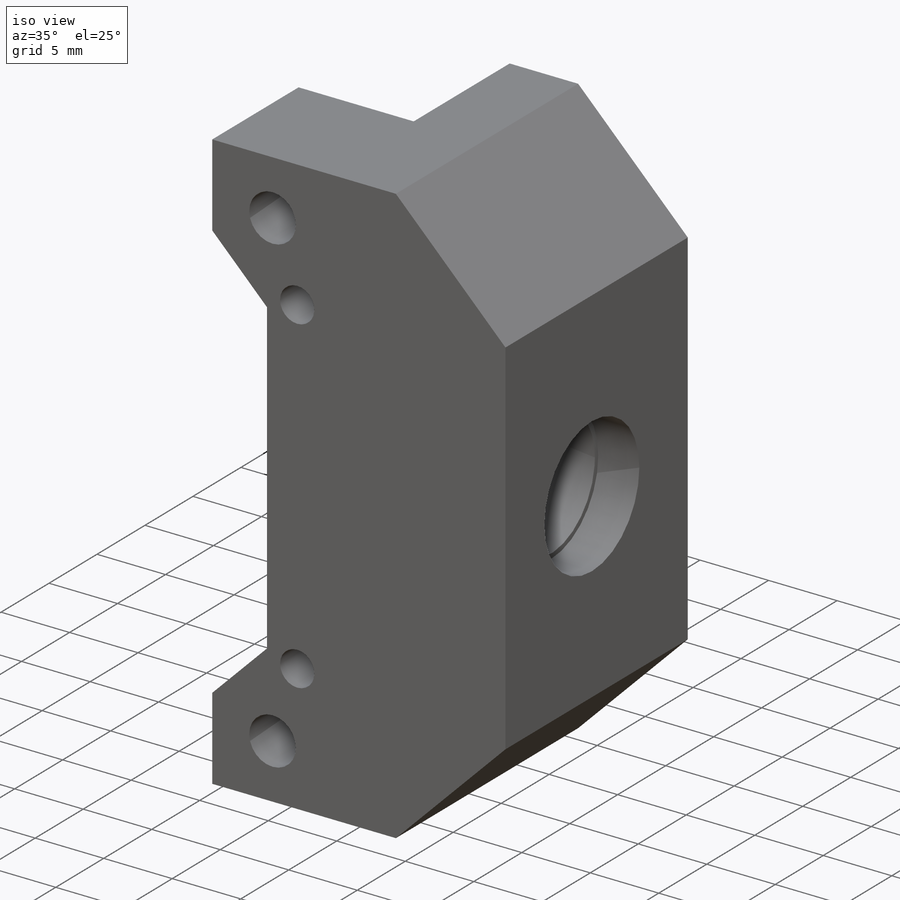
[diagram: iso view]
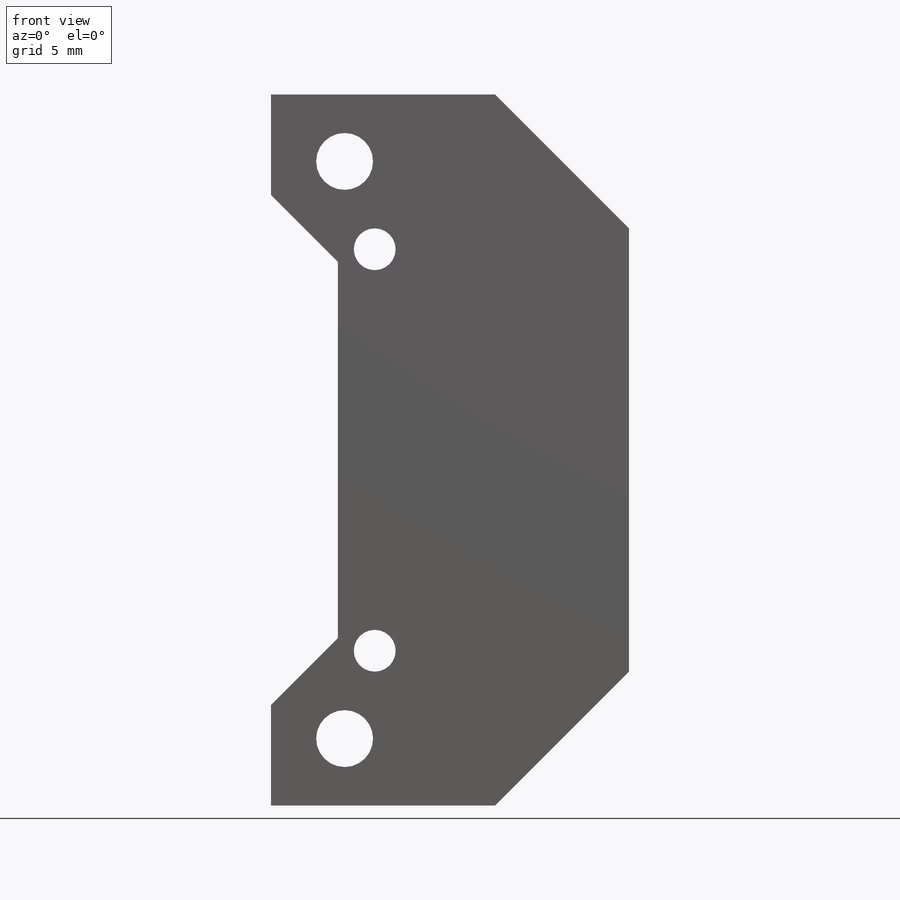
[diagram: front view]
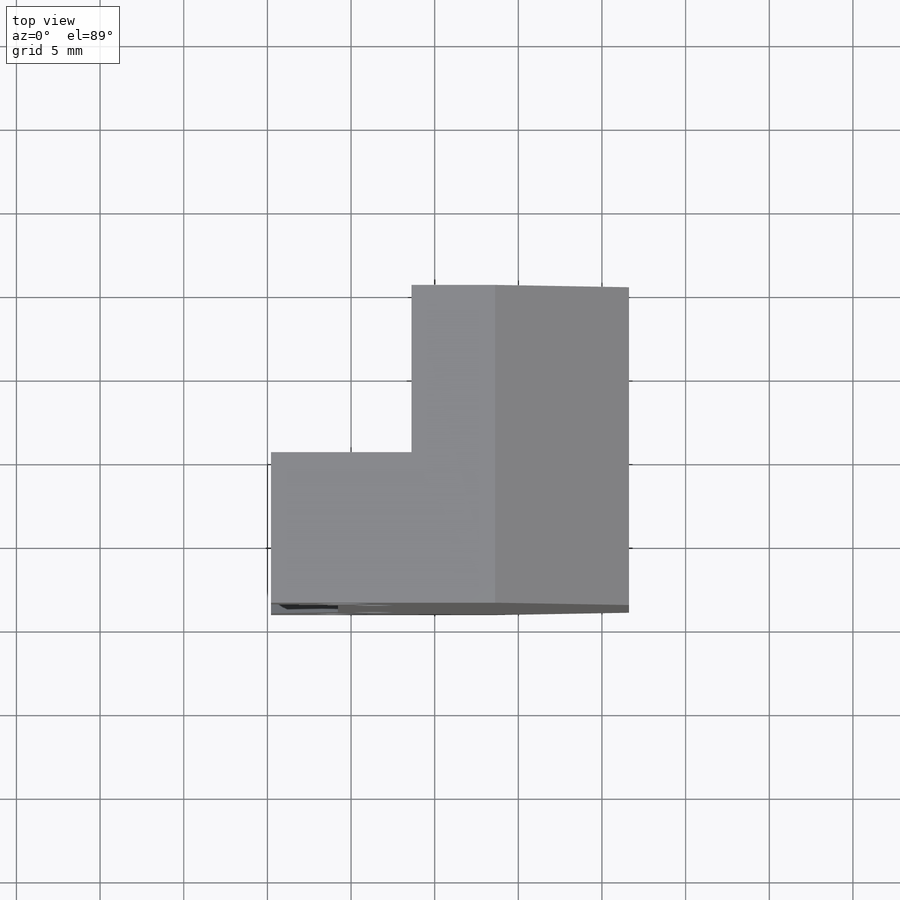
[diagram: top view]
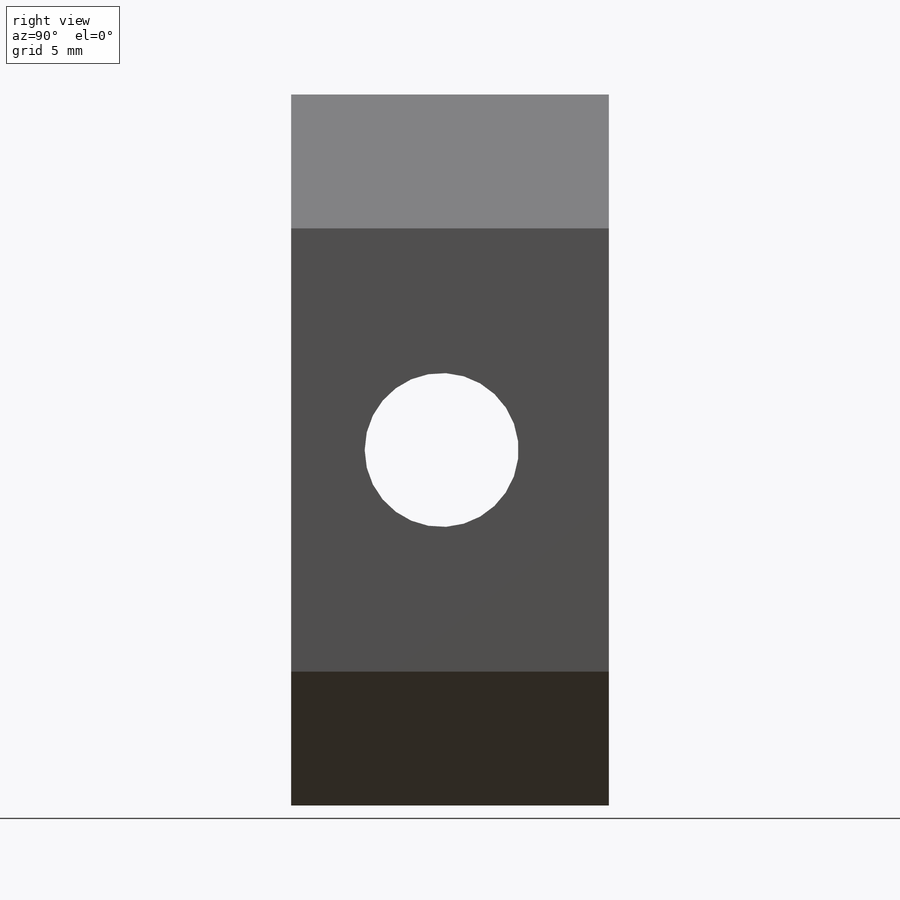
[diagram: right view]
SOLIDWORKS PART (.sldprt)
format: sldprt  version: not decoded by parser v0  size: 272,384 bytes
history: native  units: mm
features: sketch x8, cut_extrude x4, plane x3, extrude x2, material x1, chamfer x1, hole x1 (+9 scaffold rows collapsed)
feature tree (29):
  scaffold x9  (default folders/planes/origin — collapsed)
  material  "Matériau <non spécifié>"
  plane  "Plan de face"
  plane  "Plan de dessus"
  plane  "Plan de droite"
  sketch  "Esquisse1"  dims[D3=12.0mm D1=0.0mm D2=0.0mm]
  extrude  "Boss.-Extru.1"  Depth=9mm
  sketch  "Esquisse2"  dims[D1=8.0mm]
  extrude  "Boss.-Extru.2"  [1 undecoded]
  sketch  "Esquisse4"  dims[D1=12.05mm]
  cut_extrude  "Enlèv. mat.-Extru.1"  [1 undecoded]
  sketch  "Esquisse5"  dims[D1=16.05mm D2=16.0mm]
  cut_extrude  "Enlèv. mat.-Extru.2"  Depth=5mm
  sketch  "Esquisse6"  dims[D1=9.2mm]
  cut_extrude  "Enlèv. mat.-Extru.3"  [1 undecoded]
  chamfer  "Chanfrein1"  Distance=8mm Angle=45deg
  hole  "Trou pour taraudage pour trou taraudé M31"  Diameter=2.5mm Depth=19.000025mm
  sketch  "Esquisse8"  dims[D1=24.0mm D2=2.2mm]
  sketch  "Esquisse7"  dims[hole-wizard template sketch: 60 standard entries collapsed; hole parameters kept: c18.Profondeur du perçage jusqu'au prochain=~19.000025mm]
  sketch  "Esquisse9"  dims[D1=9.9mm]
  cut_extrude  "Enlèv. mat.-Extru.4"  Depth=3mm
decode coverage: 13 of 16 modeling features carry decoded parameters
note: ~ marks probable driven/reference dimensions
note: 3 parameter values undecoded
summary: no parameter record found for 3 features
note: suppression state not decoded; provenance and decode notes live in map.json
